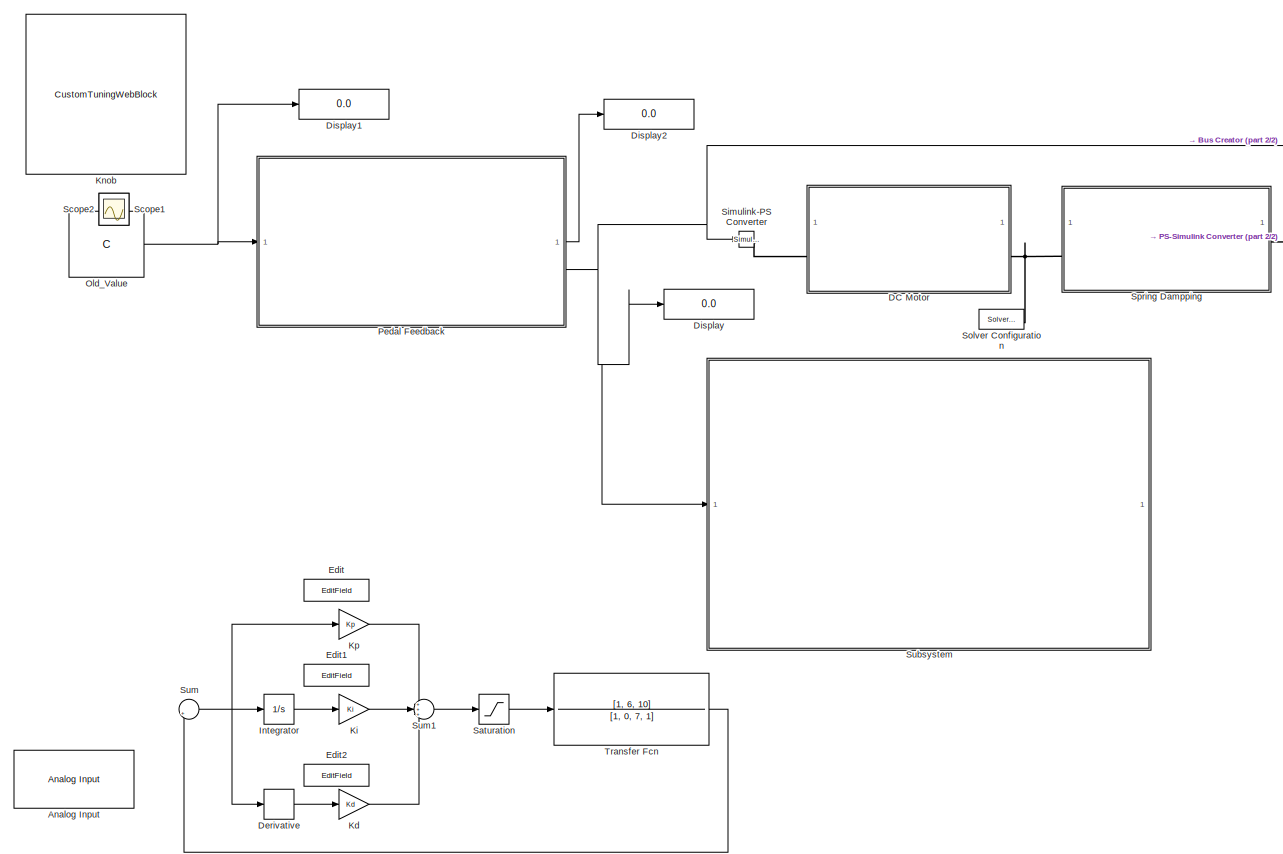
[diagram: root canvas - part 1/2, most of the canvas]
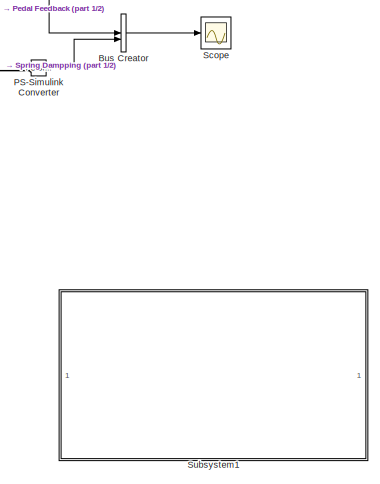
[diagram: root canvas - part 2/2, middle right region]
MODEL slx_6b447abb2e0f
KIND model
CONFIG AbsTol = auto
CONFIG EnableMultiTasking = off
CONFIG FixedStep = 0.005
CONFIG MaxStep = auto
CONFIG MinStep = auto
CONFIG RelTol = 1e-3
CONFIG SampleTimeConstraint = Unconstrained
CONFIG SolverName = FixedStepDiscrete
CONFIG StartTime = 0.0
CONFIG StopTime = inf
BLOCK [Reference] Analog Input  REF=arduinolib/Analog Input
  Commented = on
  SourceBlock = arduinolib/Analog Input
  SourceType = Arduino Analog Input
BLOCK [BusCreator] Bus Creator
  Commented = on
  DisplayOption = bar
  InheritFromInputs = on
  Inputs = 2
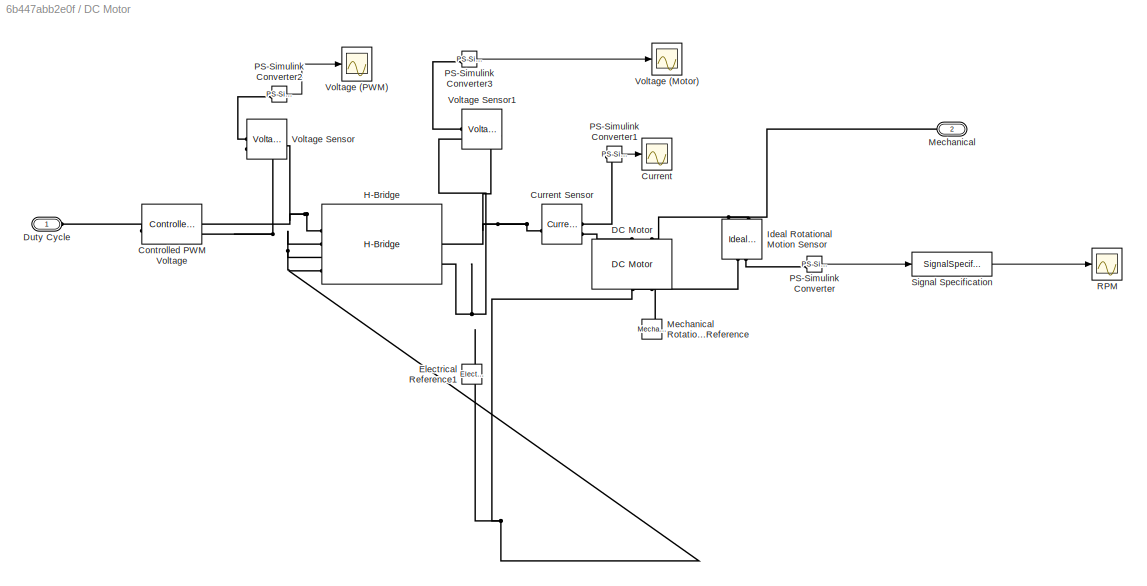
BLOCK [SubSystem] DC Motor
  Commented = on
BLOCK [Reference] DC Motor/Controlled PWM Voltage  REF=ee_lib/Integrated Circuits/Controlled PWM
Voltage
  SourceBlock = ee_lib/Integrated Circuits/Controlled PWM\nVoltage
  SourceType = Controlled PWM\nVoltage
BLOCK [Scope] DC Motor/Current
  Floating = off
  NumInputPorts = 1
  ScopeSpecificationString = Simulink.scopes.TimeScopeBlockCfg('CurrentConfiguration', extmgr.ConfigurationSet(extmgr.Configuration('Core','General UI',true),extmgr.Configuration('Core','Source UI',true),extmgr.Configuration('Sources','WiredSimulink',true,'DataLoggingVariableName','ScopeData1'),extmgr.Configuration('Visuals','Time Domain',true,'SerializedDisplays',{struct('MinYLimReal','0.77044','MaxYLimReal','2.77044','YLabe...<+1599ch>
BLOCK [Reference] DC Motor/Current Sensor  REF=fl_lib/Electrical/Electrical Sensors/Current Sensor
  SourceBlock = fl_lib/Electrical/Electrical Sensors/Current Sensor
  SourceType = Current Sensor
BLOCK [Reference] DC Motor/DC Motor  REF=ee_lib/Electromechanical/Brushed Motors/DC Motor
  NameLocation = right
  SourceBlock = ee_lib/Electromechanical/Brushed Motors/DC Motor
  SourceType = DC Motor
BLOCK [PMIOPort] DC Motor/Duty Cycle
  Side = Left
BLOCK [Reference] DC Motor/Electrical Reference1  REF=fl_lib/Electrical/Electrical Elements/Electrical Reference
  NameLocation = right
  SourceBlock = fl_lib/Electrical/Electrical Elements/Electrical Reference
  SourceType = Electrical Reference
BLOCK [Reference] DC Motor/H-Bridge  REF=ee_lib/Semiconductors &
Converters/Converters/H-Bridge
  SourceBlock = ee_lib/Semiconductors &\nConverters/Converters/H-Bridge
  SourceType = H-Bridge
BLOCK [Reference] DC Motor/Ideal Rotational Motion Sensor  REF=fl_lib/Mechanical/Mechanical Sensors/Ideal Rotational
Motion Sensor
  NameLocation = left
  SourceBlock = fl_lib/Mechanical/Mechanical Sensors/Ideal Rotational\nMotion Sensor
  SourceType = Ideal Rotational\nMotion Sensor
BLOCK [PMIOPort] DC Motor/Mechanical
  NameLocation = top
  Port = 2
  Side = Right
BLOCK [Reference] DC Motor/Mechanical Rotational Reference  REF=fl_lib/Mechanical/Rotational Elements/Mechanical
Rotational Reference
  NameLocation = right
  SourceBlock = fl_lib/Mechanical/Rotational Elements/Mechanical\nRotational Reference
  SourceType = Mechanical\nRotational Reference
BLOCK [Reference] DC Motor/PS-Simulink Converter  REF=nesl_utility/PS-Simulink
Converter
  SourceBlock = nesl_utility/PS-Simulink\nConverter
  SourceType = PS-Simulink\nConverter
BLOCK [Reference] DC Motor/PS-Simulink Converter1  REF=nesl_utility/PS-Simulink
Converter
  SourceBlock = nesl_utility/PS-Simulink\nConverter
  SourceType = PS-Simulink\nConverter
BLOCK [Reference] DC Motor/PS-Simulink Converter2  REF=nesl_utility/PS-Simulink
Converter
  SourceBlock = nesl_utility/PS-Simulink\nConverter
  SourceType = PS-Simulink\nConverter
BLOCK [Reference] DC Motor/PS-Simulink Converter3  REF=nesl_utility/PS-Simulink
Converter
  SourceBlock = nesl_utility/PS-Simulink\nConverter
  SourceType = PS-Simulink\nConverter
BLOCK [Scope] DC Motor/RPM
  Floating = off
  NumInputPorts = 1
  ScopeSpecificationString = Simulink.scopes.TimeScopeBlockCfg('CurrentConfiguration', extmgr.ConfigurationSet(extmgr.Configuration('Core','General UI',true),extmgr.Configuration('Core','Source UI',true),extmgr.Configuration('Sources','WiredSimulink',true,'DataLoggingVariableName','ScopeData2'),extmgr.Configuration('Visuals','Time Domain',true,'SerializedDisplays',{struct('MinYLimReal','-0.00000000000018','MaxYLimReal','0.000...<+1640ch>
BLOCK [SignalSpecification] DC Motor/Signal Specification
  Unit = rpm
BLOCK [Scope] DC Motor/Voltage (Motor)
  Floating = off
  NumInputPorts = 1
  ScopeSpecificationString = Simulink.scopes.TimeScopeBlockCfg('CurrentConfiguration', extmgr.ConfigurationSet(extmgr.Configuration('Core','General UI',true),extmgr.Configuration('Core','Source UI',true),extmgr.Configuration('Sources','WiredSimulink',true,'DataLoggingVariableName','ScopeData3'),extmgr.Configuration('Visuals','Time Domain',true,'SerializedDisplays',{struct('MinYLimReal','-0.75','MaxYLimReal','6.75','YLabelReal...<+1559ch>
BLOCK [Scope] DC Motor/Voltage (PWM)
  Floating = off
  NumInputPorts = 1
  Priority = 3
  ScopeSpecificationString = Simulink.scopes.TimeScopeBlockCfg('CurrentConfiguration', extmgr.ConfigurationSet(extmgr.Configuration('Core','General UI',true),extmgr.Configuration('Core','Source UI',true),extmgr.Configuration('Sources','WiredSimulink',true),extmgr.Configuration('Visuals','Time Domain',true,'SerializedDisplays',{struct('MinYLimReal','4.00000','MaxYLimReal','6.00000','YLabelReal','','MinYLimMag','4.00000','MaxYL...<+1479ch>
BLOCK [Reference] DC Motor/Voltage Sensor  REF=fl_lib/Electrical/Electrical Sensors/Voltage Sensor
  SourceBlock = fl_lib/Electrical/Electrical Sensors/Voltage Sensor
  SourceType = Voltage Sensor
BLOCK [Reference] DC Motor/Voltage Sensor1  REF=fl_lib/Electrical/Electrical Sensors/Voltage Sensor
  SourceBlock = fl_lib/Electrical/Electrical Sensors/Voltage Sensor
  SourceType = Voltage Sensor
BLOCK [Derivative] Derivative
  Commented = on
BLOCK [Display] Display
  Decimation = 1
BLOCK [Display] Display1
  Decimation = 1
BLOCK [Display] Display2
  Decimation = 1
BLOCK [EditField] Edit
  Alignment = Center
  Commented = on
  LabelPosition = Hide
  ShowInitialText = on
BLOCK [EditField] Edit1
  Alignment = Center
  Commented = on
  LabelPosition = Hide
  ShowInitialText = on
BLOCK [EditField] Edit2
  Alignment = Center
  Commented = on
  LabelPosition = Hide
  ShowInitialText = on
BLOCK [Integrator] Integrator
  Commented = on
BLOCK [Gain] Kd
  Commented = on
  Gain = Kd
BLOCK [Gain] Ki
  Commented = on
  Gain = Ki
BLOCK [CustomTuningWebBlock] Knob
  Configuration = {"components":[{"name":"CircularScaleComponent","settings":{"bounds":{"max":5,"min":0,"tickInterval":"auto"},"direction":"cw","flipLimits":0,"innerRadius":0.6636618227670849,"internalTickHeightScaleFactor":1,"labelColor":[255,255,200],"labelFont":{"font":"Arial","fontSize":12},"labelRadius":0.79,"labelTransparency":1,"minorTickHeightScaleFactor":0.2,"needleImage":{"size":[150,150],"src":"data:imag...<+43668ch>
  LabelPosition = Hide
  ShowInitialText = on
BLOCK [Gain] Kp
  Commented = on
  Gain = Kp
BLOCK [Constant] Old_Value
  Value = C
BLOCK [Reference] PS-Simulink Converter  REF=nesl_utility/PS-Simulink
Converter
  Commented = on
  SourceBlock = nesl_utility/PS-Simulink\nConverter
  SourceType = PS-Simulink\nConverter
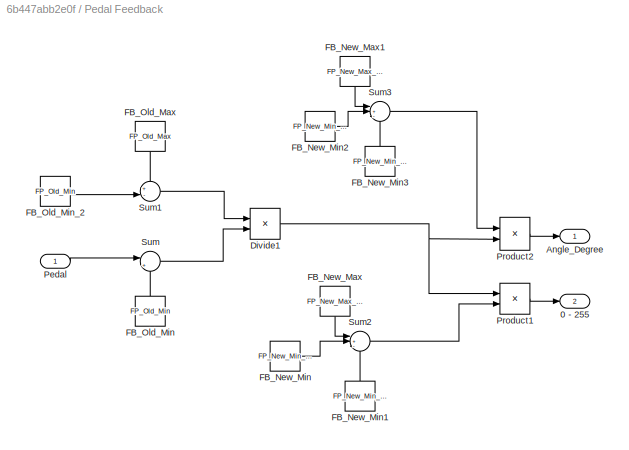
BLOCK [SubSystem] Pedal Feedback
BLOCK [Outport] Pedal Feedback/0 - 255
  Port = 2
BLOCK [Outport] Pedal Feedback/Angle_Degree
BLOCK [Product] Pedal Feedback/Divide1
  Inputs = /*
BLOCK [Constant] Pedal Feedback/FB_New_Max
  NameLocation = left
  Value = FP_New_Max_Percent
BLOCK [Constant] Pedal Feedback/FB_New_Max1
  NameLocation = left
  Value = FP_New_Max_Angle
BLOCK [Constant] Pedal Feedback/FB_New_Min
  Value = FP_New_Min_Percent
BLOCK [Constant] Pedal Feedback/FB_New_Min1
  NameLocation = right
  Value = FP_New_Min_Percent
BLOCK [Constant] Pedal Feedback/FB_New_Min2
  Value = FP_New_Min_Angle
BLOCK [Constant] Pedal Feedback/FB_New_Min3
  NameLocation = right
  Value = FP_New_Min_Angle
BLOCK [Constant] Pedal Feedback/FB_Old_Max
  NameLocation = left
  Value = FP_Old_Max
BLOCK [Constant] Pedal Feedback/FB_Old_Min
  NameLocation = right
  Value = FP_Old_Min
BLOCK [Constant] Pedal Feedback/FB_Old_Min_2
  Value = FP_Old_Min
BLOCK [Inport] Pedal Feedback/Pedal
BLOCK [Product] Pedal Feedback/Product1
BLOCK [Product] Pedal Feedback/Product2
BLOCK [Sum] Pedal Feedback/Sum
  Inputs = |+-
BLOCK [Sum] Pedal Feedback/Sum1
  Inputs = +-|
BLOCK [Sum] Pedal Feedback/Sum2
  Inputs = |+-+
BLOCK [Sum] Pedal Feedback/Sum3
  Inputs = |+-+
BLOCK [Saturate] Saturation
  Commented = on
  LowerLimit = -2
  UpperLimit = 2
BLOCK [Scope] Scope
  Commented = on
  Floating = off
  NumInputPorts = 1
  ScopeSpecificationString = Simulink.scopes.TimeScopeBlockCfg('CurrentConfiguration', extmgr.ConfigurationSet(extmgr.Configuration('Core','General UI',true),extmgr.Configuration('Core','Source UI',true),extmgr.Configuration('Sources','WiredSimulink',true,'DataLoggingVariableName','ScopeData1'),extmgr.Configuration('Visuals','Time Domain',true,'SerializedDisplays',{struct('MinYLimReal','8.40274','MaxYLimReal','110.98523','YLa...<+1566ch>
BLOCK [Scope] Scope1
  Floating = off
  IOType = viewer
  NumInputPorts = 1
  ScopeSpecificationString = Simulink.scopes.TimeScopeBlockCfg('CurrentConfiguration', extmgr.ConfigurationSet(extmgr.Configuration('Core','General UI',true),extmgr.Configuration('Core','Source UI',true),extmgr.Configuration('Sources','WiredSimulink',true,'DataLoggingVariableName','ScopeData1'),extmgr.Configuration('Visuals','Time Domain',true,'SerializedDisplays',{struct('MinYLimReal','27.5','MaxYLimReal','227.5','YLabelReal...<+1493ch>
BLOCK [Scope] Scope2
  Floating = off
  IOType = viewer
  NumInputPorts = 1
  ScopeSpecificationString = Simulink.scopes.TimeScopeBlockCfg('CurrentConfiguration', extmgr.ConfigurationSet(extmgr.Configuration('Core','General UI',true),extmgr.Configuration('Core','Source UI',true),extmgr.Configuration('Sources','WiredSimulink',true,'DataLoggingVariableName','ScopeData1'),extmgr.Configuration('Visuals','Time Domain',true,'SerializedDisplays',{struct('MinYLimReal','1.999952','MaxYLimReal','2.00004','YLab...<+1481ch>
BLOCK [Reference] Simulink-PS Converter  REF=nesl_utility/Simulink-PS
Converter
  Commented = on
  SourceBlock = nesl_utility/Simulink-PS\nConverter
  SourceType = Simulink-PS\nConverter
BLOCK [Reference] Solver Configuration  REF=nesl_utility/Solver
Configuration
  Commented = on
  SourceBlock = nesl_utility/Solver\nConfiguration
  SourceType = Solver\nConfiguration
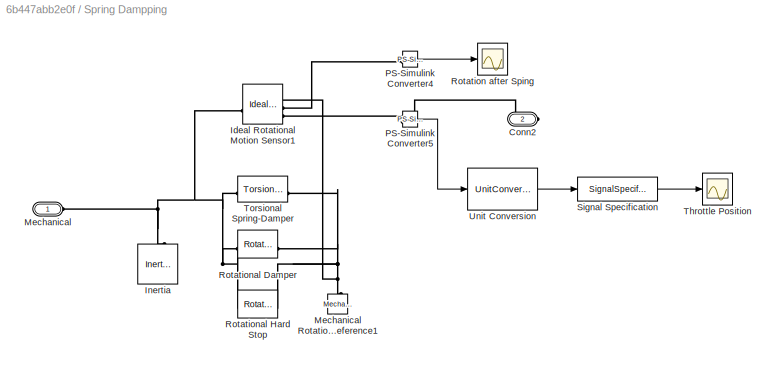
BLOCK [SubSystem] Spring Dampping
  Commented = on
BLOCK [PMIOPort] Spring Dampping/Conn2
  NameLocation = top
  Port = 2
  Side = Right
BLOCK [Reference] Spring Dampping/Ideal Rotational Motion Sensor1  REF=fl_lib/Mechanical/Mechanical Sensors/Ideal Rotational
Motion Sensor
  SourceBlock = fl_lib/Mechanical/Mechanical Sensors/Ideal Rotational\nMotion Sensor
  SourceType = Ideal Rotational\nMotion Sensor
BLOCK [Reference] Spring Dampping/Inertia  REF=fl_lib/Mechanical/Rotational Elements/Inertia
  NameLocation = right
  SourceBlock = fl_lib/Mechanical/Rotational Elements/Inertia
  SourceType = Inertia
BLOCK [PMIOPort] Spring Dampping/Mechanical
  Side = Left
BLOCK [Reference] Spring Dampping/Mechanical Rotational Reference1  REF=fl_lib/Mechanical/Rotational Elements/Mechanical
Rotational Reference
  NameLocation = right
  SourceBlock = fl_lib/Mechanical/Rotational Elements/Mechanical\nRotational Reference
  SourceType = Mechanical\nRotational Reference
BLOCK [Reference] Spring Dampping/PS-Simulink Converter4  REF=nesl_utility/PS-Simulink
Converter
  SourceBlock = nesl_utility/PS-Simulink\nConverter
  SourceType = PS-Simulink\nConverter
BLOCK [Reference] Spring Dampping/PS-Simulink Converter5  REF=nesl_utility/PS-Simulink
Converter
  SourceBlock = nesl_utility/PS-Simulink\nConverter
  SourceType = PS-Simulink\nConverter
BLOCK [Scope] Spring Dampping/Rotation after Sping
  Floating = off
  NumInputPorts = 1
  ScopeSpecificationString = Simulink.scopes.TimeScopeBlockCfg('CurrentConfiguration', extmgr.ConfigurationSet(extmgr.Configuration('Core','General UI',true),extmgr.Configuration('Core','Source UI',true),extmgr.Configuration('Sources','WiredSimulink',true,'DataLoggingVariableName','ScopeData5'),extmgr.Configuration('Visuals','Time Domain',true,'SerializedDisplays',{struct('MinYLimReal','-1.00000','MaxYLimReal','1.00000','YLab...<+1505ch>
BLOCK [Reference] Spring Dampping/Rotational Damper  REF=fl_lib/Mechanical/Rotational Elements/Rotational Damper
  SourceBlock = fl_lib/Mechanical/Rotational Elements/Rotational Damper
  SourceType = Rotational Damper
BLOCK [Reference] Spring Dampping/Rotational Hard Stop  REF=fl_lib/Mechanical/Rotational Elements/Rotational Hard Stop
  SourceBlock = fl_lib/Mechanical/Rotational Elements/Rotational Hard Stop
  SourceType = Rotational Hard Stop
BLOCK [SignalSpecification] Spring Dampping/Signal Specification
  Unit = deg
BLOCK [Scope] Spring Dampping/Throttle Position
  Floating = off
  NumInputPorts = 1
  ScopeSpecificationString = Simulink.scopes.TimeScopeBlockCfg('CurrentConfiguration', extmgr.ConfigurationSet(extmgr.Configuration('Core','General UI',true),extmgr.Configuration('Core','Source UI',true),extmgr.Configuration('Sources','WiredSimulink',true,'DataLoggingVariableName','ScopeData1'),extmgr.Configuration('Visuals','Time Domain',true,'SerializedDisplays',{struct('MinYLimReal','-0.01756','MaxYLimReal','0.15792','YLab...<+1578ch>
BLOCK [Reference] Spring Dampping/Torsional Spring-Damper  REF=sdl_lib/Couplings & Drives/Torsional
Spring-Damper
  SourceBlock = sdl_lib/Couplings & Drives/Torsional\nSpring-Damper
  SourceType = Torsional\nSpring-Damper
BLOCK [UnitConversion] Spring Dampping/Unit Conversion
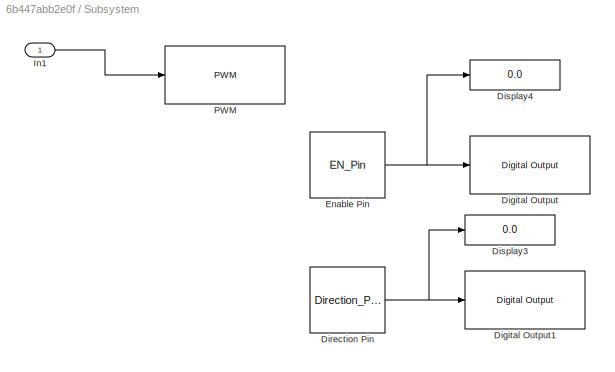
BLOCK [SubSystem] Subsystem
BLOCK [Reference] Subsystem/Digital Output  REF=arduinolib/Digital Output
  SourceBlock = arduinolib/Digital Output
  SourceType = Arduino Digital Output
BLOCK [Reference] Subsystem/Digital Output1  REF=arduinolib/Digital Output
  SourceBlock = arduinolib/Digital Output
  SourceType = Arduino Digital Output
BLOCK [Constant] Subsystem/Direction Pin
  Value = Direction_Pin
BLOCK [Display] Subsystem/Display3
  Decimation = 1
BLOCK [Display] Subsystem/Display4
  Decimation = 1
BLOCK [Constant] Subsystem/Enable Pin
  Value = EN_Pin
BLOCK [Inport] Subsystem/In1
BLOCK [Reference] Subsystem/PWM  REF=arduinolib/PWM
  SourceBlock = arduinolib/PWM
  SourceType = Arduino PWM
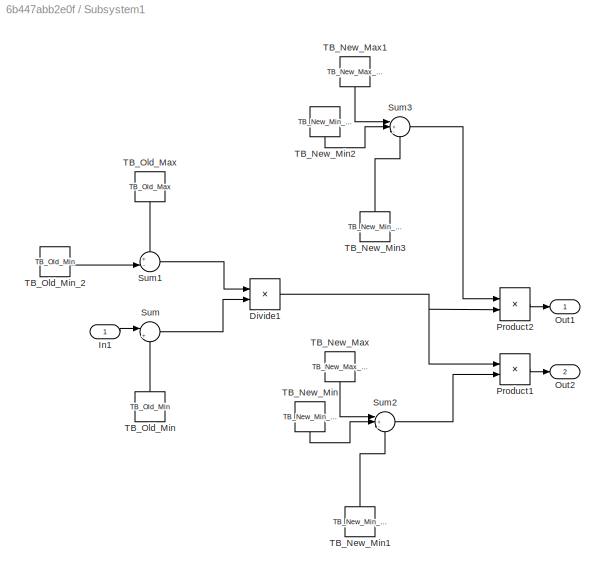
BLOCK [SubSystem] Subsystem1
  Commented = on
BLOCK [Product] Subsystem1/Divide1
  Inputs = /*
BLOCK [Inport] Subsystem1/In1
BLOCK [Outport] Subsystem1/Out1
BLOCK [Outport] Subsystem1/Out2
  Port = 2
BLOCK [Product] Subsystem1/Product1
BLOCK [Product] Subsystem1/Product2
BLOCK [Sum] Subsystem1/Sum
  Inputs = |+-
BLOCK [Sum] Subsystem1/Sum1
  Inputs = +-|
BLOCK [Sum] Subsystem1/Sum2
  Inputs = |+-+
BLOCK [Sum] Subsystem1/Sum3
  Inputs = |+-+
BLOCK [Constant] Subsystem1/TB_New_Max
  NameLocation = left
  Value = TB_New_Max_Percent
BLOCK [Constant] Subsystem1/TB_New_Max1
  NameLocation = left
  Value = TB_New_Max_Angle
BLOCK [Constant] Subsystem1/TB_New_Min
  NameLocation = left
  Value = TB_New_Min_Percent
BLOCK [Constant] Subsystem1/TB_New_Min1
  NameLocation = right
  Value = TB_New_Min_Percent
BLOCK [Constant] Subsystem1/TB_New_Min2
  NameLocation = left
  Value = TB_New_Min_Angle
BLOCK [Constant] Subsystem1/TB_New_Min3
  NameLocation = right
  Value = TB_New_Min_Angle
BLOCK [Constant] Subsystem1/TB_Old_Max
  NameLocation = left
  Value = TB_Old_Max
BLOCK [Constant] Subsystem1/TB_Old_Min
  NameLocation = right
  Value = TB_Old_Min
BLOCK [Constant] Subsystem1/TB_Old_Min_2
  Value = TB_Old_Min
BLOCK [Sum] Sum
  Commented = on
  Inputs = |+-
BLOCK [Sum] Sum1
  Commented = on
  Inputs = +++
BLOCK [TransferFcn] Transfer Fcn
  Commented = on
  Denominator = [1, 0, 7, 1]
  Numerator = [1, 6, 10]
LINE Bus Creator:1 -> Scope:1
LINE DC Motor/PS-Simulink Converter1:1 -> DC Motor/Current:1
LINE DC Motor/PS-Simulink Converter2:1 -> DC Motor/Voltage (PWM):1
LINE DC Motor/PS-Simulink Converter3:1 -> DC Motor/Voltage (Motor):1
LINE DC Motor/PS-Simulink Converter:1 -> DC Motor/Signal Specification:1
LINE DC Motor/Signal Specification:1 -> DC Motor/RPM:1
LINE Derivative:1 -> Kd:1
LINE Integrator:1 -> Ki:1
LINE Kd:1 -> Sum1:3
LINE Ki:1 -> Sum1:2
LINE Kp:1 -> Sum1:1
NET Old_Value:1 -> Display1:1, Pedal Feedback:1
LINE PS-Simulink Converter:1 -> Bus Creator:2
NET Pedal Feedback/Divide1:1 -> Pedal Feedback/Product1:1, Pedal Feedback/Product2:2
LINE Pedal Feedback/FB_New_Max1:1 -> Pedal Feedback/Sum3:1
LINE Pedal Feedback/FB_New_Max:1 -> Pedal Feedback/Sum2:1
LINE Pedal Feedback/FB_New_Min1:1 -> Pedal Feedback/Sum2:3
LINE Pedal Feedback/FB_New_Min2:1 -> Pedal Feedback/Sum3:2
LINE Pedal Feedback/FB_New_Min3:1 -> Pedal Feedback/Sum3:3
LINE Pedal Feedback/FB_New_Min:1 -> Pedal Feedback/Sum2:2
LINE Pedal Feedback/FB_Old_Max:1 -> Pedal Feedback/Sum1:1
LINE Pedal Feedback/FB_Old_Min:1 -> Pedal Feedback/Sum:2
LINE Pedal Feedback/FB_Old_Min_2:1 -> Pedal Feedback/Sum1:2
LINE Pedal Feedback/Pedal:1 -> Pedal Feedback/Sum:1
LINE Pedal Feedback/Product1:1 -> Pedal Feedback/0 - 255:1
LINE Pedal Feedback/Product2:1 -> Pedal Feedback/Angle_Degree:1
LINE Pedal Feedback/Sum1:1 -> Pedal Feedback/Divide1:1
LINE Pedal Feedback/Sum2:1 -> Pedal Feedback/Product1:2
LINE Pedal Feedback/Sum3:1 -> Pedal Feedback/Product2:1
LINE Pedal Feedback/Sum:1 -> Pedal Feedback/Divide1:2
LINE Pedal Feedback:1 -> Display2:1
NET Pedal Feedback:2 -> Bus Creator:1, Display:1, Simulink-PS Converter:1, Subsystem:1
LINE Saturation:1 -> Transfer Fcn:1
LINE Spring Dampping/PS-Simulink Converter4:1 -> Spring Dampping/Rotation after Sping:1
LINE Spring Dampping/PS-Simulink Converter5:1 -> Spring Dampping/Unit Conversion:1
LINE Spring Dampping/Signal Specification:1 -> Spring Dampping/Throttle Position:1
LINE Spring Dampping/Unit Conversion:1 -> Spring Dampping/Signal Specification:1
NET Subsystem/Direction Pin:1 -> Subsystem/Digital Output1:1, Subsystem/Display3:1
NET Subsystem/Enable Pin:1 -> Subsystem/Digital Output:1, Subsystem/Display4:1
LINE Subsystem/In1:1 -> Subsystem/PWM:1
NET Subsystem1/Divide1:1 -> Subsystem1/Product1:1, Subsystem1/Product2:2
LINE Subsystem1/In1:1 -> Subsystem1/Sum:1
LINE Subsystem1/Product1:1 -> Subsystem1/Out2:1
LINE Subsystem1/Product2:1 -> Subsystem1/Out1:1
LINE Subsystem1/Sum1:1 -> Subsystem1/Divide1:1
LINE Subsystem1/Sum2:1 -> Subsystem1/Product1:2
LINE Subsystem1/Sum3:1 -> Subsystem1/Product2:1
LINE Subsystem1/Sum:1 -> Subsystem1/Divide1:2
LINE Subsystem1/TB_New_Max1:1 -> Subsystem1/Sum3:1
LINE Subsystem1/TB_New_Max:1 -> Subsystem1/Sum2:1
LINE Subsystem1/TB_New_Min1:1 -> Subsystem1/Sum2:3
LINE Subsystem1/TB_New_Min2:1 -> Subsystem1/Sum3:2
LINE Subsystem1/TB_New_Min3:1 -> Subsystem1/Sum3:3
LINE Subsystem1/TB_New_Min:1 -> Subsystem1/Sum2:2
LINE Subsystem1/TB_Old_Max:1 -> Subsystem1/Sum1:1
LINE Subsystem1/TB_Old_Min:1 -> Subsystem1/Sum:2
LINE Subsystem1/TB_Old_Min_2:1 -> Subsystem1/Sum1:2
LINE Sum1:1 -> Saturation:1
NET Sum:1 -> Derivative:1, Integrator:1, Kp:1
LINE Transfer Fcn:1 -> Sum:2
PLINE DC Motor/Controlled PWM Voltage:LConn1 -- DC Motor/Duty Cycle:RConn1
PNET net1: DC Motor/Controlled PWM Voltage:RConn1 -- DC Motor/H-Bridge:LConn1 -- DC Motor/Voltage Sensor:LConn1
PNET net2: DC Motor/Controlled PWM Voltage:RConn2 -- DC Motor/DC Motor:RConn1 -- DC Motor/Electrical Reference1:LConn1 -- DC Motor/H-Bridge:LConn2 -- DC Motor/H-Bridge:LConn3 -- DC Motor/H-Bridge:LConn4 -- DC Motor/H-Bridge:RConn2 -- DC Motor/Voltage Sensor1:RConn2 -- DC Motor/Voltage Sensor:RConn2
PNET net3: DC Motor/Current Sensor:LConn1 -- DC Motor/H-Bridge:RConn1 -- DC Motor/Voltage Sensor1:LConn1
PLINE DC Motor/Current Sensor:RConn1 -- DC Motor/PS-Simulink Converter1:LConn1
PLINE DC Motor/Current Sensor:RConn2 -- DC Motor/DC Motor:LConn1
PNET net4: DC Motor/DC Motor:LConn2 -- DC Motor/Ideal Rotational Motion Sensor:LConn1 -- DC Motor/Mechanical:RConn1
PNET net5: DC Motor/DC Motor:RConn2 -- DC Motor/Ideal Rotational Motion Sensor:RConn1 -- DC Motor/Mechanical Rotational Reference:LConn1
PLINE DC Motor/Ideal Rotational Motion Sensor:RConn2 -- DC Motor/PS-Simulink Converter:LConn1
PLINE DC Motor/PS-Simulink Converter2:LConn1 -- DC Motor/Voltage Sensor:RConn1
PLINE DC Motor/PS-Simulink Converter3:LConn1 -- DC Motor/Voltage Sensor1:RConn1
PLINE DC Motor:LConn1 -- Simulink-PS Converter:RConn1
PNET net6: DC Motor:RConn1 -- Solver Configuration:RConn1 -- Spring Dampping:LConn1
PLINE PS-Simulink Converter:LConn1 -- Spring Dampping:RConn1
PNET net7: Spring Dampping/Conn2:RConn1 -- Spring Dampping/Ideal Rotational Motion Sensor1:RConn3 -- Spring Dampping/PS-Simulink Converter5:LConn1
PNET net8: Spring Dampping/Ideal Rotational Motion Sensor1:LConn1 -- Spring Dampping/Inertia:LConn1 -- Spring Dampping/Mechanical:RConn1 -- Spring Dampping/Rotational Damper:LConn1 -- Spring Dampping/Rotational Hard Stop:LConn1 -- Spring Dampping/Torsional Spring-Damper:LConn1
PNET net9: Spring Dampping/Ideal Rotational Motion Sensor1:RConn1 -- Spring Dampping/Mechanical Rotational Reference1:LConn1 -- Spring Dampping/Rotational Damper:RConn1 -- Spring Dampping/Rotational Hard Stop:RConn1 -- Spring Dampping/Torsional Spring-Damper:RConn1
PLINE Spring Dampping/Ideal Rotational Motion Sensor1:RConn2 -- Spring Dampping/PS-Simulink Converter4:LConn1
note: NET lines group one-source signal fan-out (src -> all destinations, sorted); 1:1 wires keep LINE; PNET lines group multi-terminal physical nets as a canonical sorted terminal list (undirected conserving connections); 2-terminal nets keep the pairwise PLINE form
